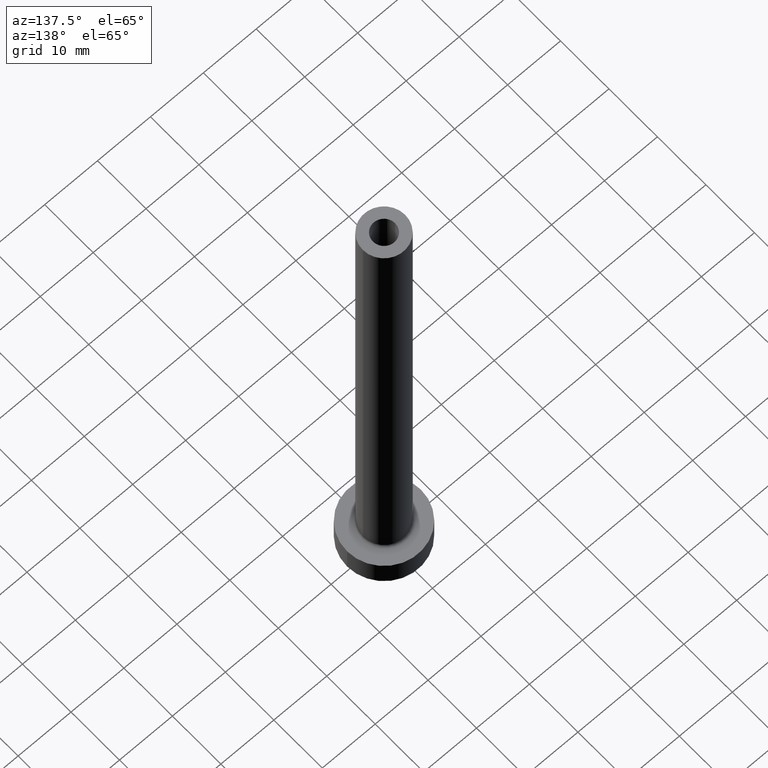
[diagram: clean part render]
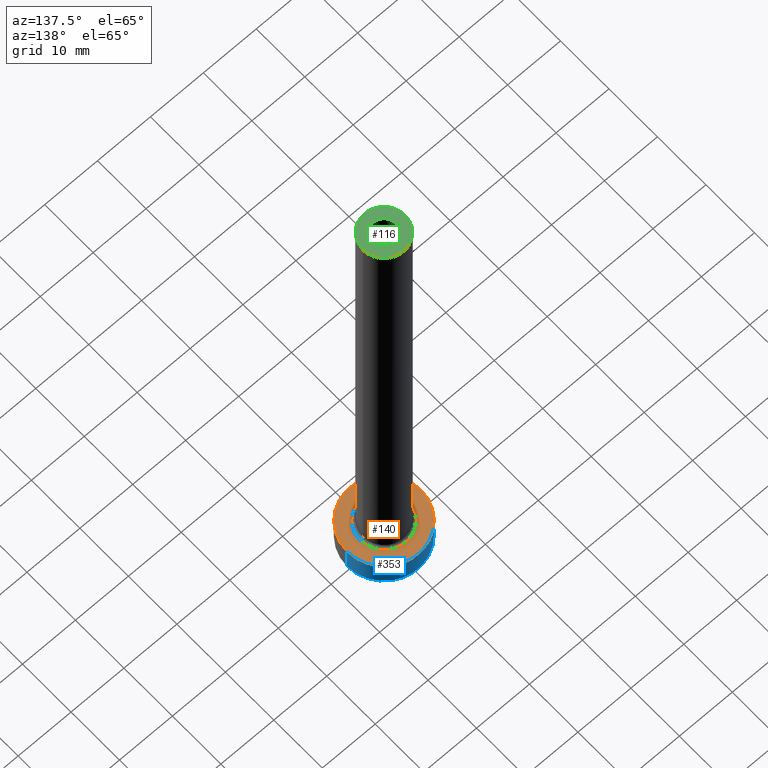
[diagram: same view with three faces highlighted in distinct colors, each labeled with its STEP entity id]
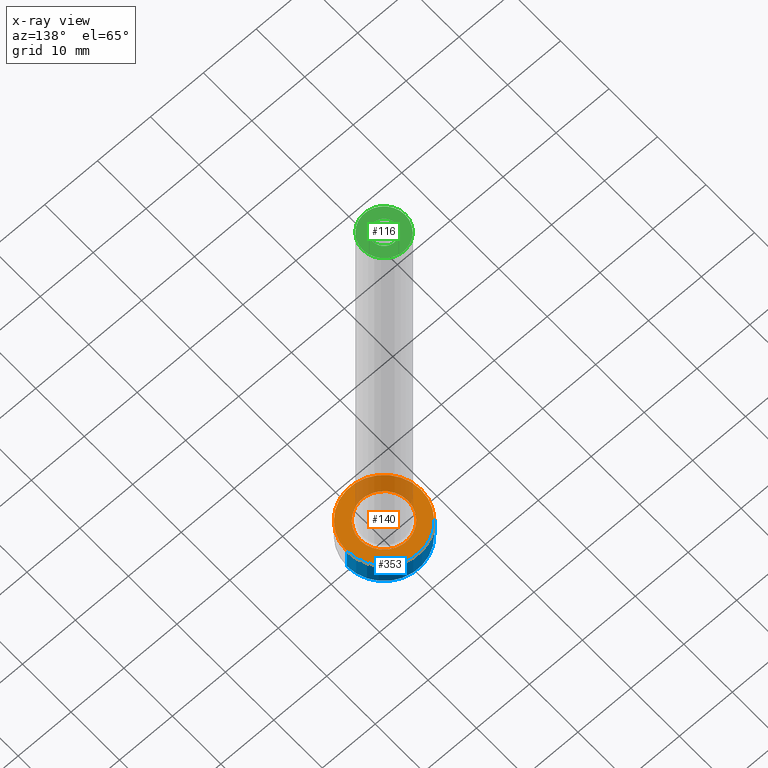
[diagram: x-ray of the same camera — body ghosted, the three highlighted faces saturated]
A machine part, auxiliary view with three faces highlighted in distinct colors.
The next image is the same camera in x-ray (body ghosted, the three faces saturated) — at least one of them is partly hidden behind the body in this view.
Their STEP definitions:

[orange] entity #140 — the highlighted planar face has unit normal (0, 0, 1).
#2 = DIRECTION ( 'NONE',  ( 0.000000000000000000, 0.000000000000000000, 1.000000000000000000 ) ) ;
#3 = ORIENTED_EDGE ( 'NONE', *, *, #135, .T. ) ;
#29 = VERTEX_POINT ( 'NONE', #160 ) ;
#36 = CARTESIAN_POINT ( 'NONE',  ( 7.000000000000000000, 8.572527594031473190E-16, 5.000000000000000000 ) ) ;
#42 = CARTESIAN_POINT ( 'NONE',  ( 0.000000000000000000, 0.000000000000000000, 5.000000000000000000 ) ) ;
#43 = VERTEX_POINT ( 'NONE', #36 ) ;
#44 = ORIENTED_EDGE ( 'NONE', *, *, #229, .T. ) ;
#53 = CARTESIAN_POINT ( 'NONE',  ( 0.000000000000000000, 0.000000000000000000, 5.000000000000000000 ) ) ;
#63 = AXIS2_PLACEMENT_3D ( 'NONE', #231, #299, #189 ) ;
#115 = CARTESIAN_POINT ( 'NONE',  ( -4.500000000000000888, 5.510910596163088569E-16, 5.000000000000002665 ) ) ;
#118 = CIRCLE ( 'NONE', #421, 7.000000000000000000 ) ;
#135 = EDGE_CURVE ( 'NONE', #29, #43, #118, .T. ) ;
#140 = ADVANCED_FACE ( 'NONE', ( #181, #177 ), #214, .T. ) ;
#143 = EDGE_LOOP ( 'NONE', ( #304, #451 ) ) ;
#145 = DIRECTION ( 'NONE',  ( -0.000000000000000000, -0.000000000000000000, -1.000000000000000000 ) ) ;
#160 = CARTESIAN_POINT ( 'NONE',  ( -7.000000000000000000, 0.000000000000000000, 5.000000000000000000 ) ) ;
#165 = CARTESIAN_POINT ( 'NONE',  ( 0.000000000000000000, 0.000000000000000000, 5.000000000000000000 ) ) ;
#169 = DIRECTION ( 'NONE',  ( -0.000000000000000000, -0.000000000000000000, -1.000000000000000000 ) ) ;
#177 = FACE_OUTER_BOUND ( 'NONE', #415, .T. ) ;
#181 = FACE_BOUND ( 'NONE', #143, .T. ) ;
#189 = DIRECTION ( 'NONE',  ( 1.000000000000000000, 0.000000000000000000, 0.000000000000000000 ) ) ;
#195 = CARTESIAN_POINT ( 'NONE',  ( 0.000000000000000000, 0.000000000000000000, 5.000000000000000000 ) ) ;
#198 = CIRCLE ( 'NONE', #63, 7.000000000000000000 ) ;
#214 = PLANE ( 'NONE',  #217 ) ;
#217 = AXIS2_PLACEMENT_3D ( 'NONE', #42, #327, #356 ) ;
#229 = EDGE_CURVE ( 'NONE', #43, #29, #198, .T. ) ;
#231 = CARTESIAN_POINT ( 'NONE',  ( 0.000000000000000000, 0.000000000000000000, 5.000000000000000000 ) ) ;
#246 = DIRECTION ( 'NONE',  ( 1.000000000000000000, 0.000000000000000000, 0.000000000000000000 ) ) ;
#299 = DIRECTION ( 'NONE',  ( 0.000000000000000000, 0.000000000000000000, 1.000000000000000000 ) ) ;
#304 = ORIENTED_EDGE ( 'NONE', *, *, #347, .T. ) ;
#323 = VERTEX_POINT ( 'NONE', #115 ) ;
#327 = DIRECTION ( 'NONE',  ( 0.000000000000000000, 0.000000000000000000, 1.000000000000000000 ) ) ;
#336 = CARTESIAN_POINT ( 'NONE',  ( 4.500000000000000888, 0.000000000000000000, 5.000000000000002665 ) ) ;
#347 = EDGE_CURVE ( 'NONE', #382, #323, #454, .T. ) ;
#348 = CIRCLE ( 'NONE', #446, 4.500000000000000888 ) ;
#354 = AXIS2_PLACEMENT_3D ( 'NONE', #195, #145, #442 ) ;
#356 = DIRECTION ( 'NONE',  ( 1.000000000000000000, 0.000000000000000000, -0.000000000000000000 ) ) ;
#382 = VERTEX_POINT ( 'NONE', #336 ) ;
#415 = EDGE_LOOP ( 'NONE', ( #3, #44 ) ) ;
#421 = AXIS2_PLACEMENT_3D ( 'NONE', #53, #2, #246 ) ;
#438 = EDGE_CURVE ( 'NONE', #323, #382, #348, .T. ) ;
#442 = DIRECTION ( 'NONE',  ( 1.000000000000000000, 0.000000000000000000, 0.000000000000000000 ) ) ;
#446 = AXIS2_PLACEMENT_3D ( 'NONE', #165, #169, #455 ) ;
#451 = ORIENTED_EDGE ( 'NONE', *, *, #438, .T. ) ;
#454 = CIRCLE ( 'NONE', #354, 4.500000000000000888 ) ;
#455 = DIRECTION ( 'NONE',  ( 1.000000000000000000, 0.000000000000000000, 0.000000000000000000 ) ) ;

[blue] entity #353 — the highlighted cylindrical surface (partial cylindrical patch) has radius 7 mm, axis along (-0, -0, -1).
#9 = CARTESIAN_POINT ( 'NONE',  ( -7.000000000000000000, 0.000000000000000000, 0.000000000000000000 ) ) ;
#11 = FACE_OUTER_BOUND ( 'NONE', #364, .T. ) ;
#17 = LINE ( 'NONE', #223, #362 ) ;
#25 = ORIENTED_EDGE ( 'NONE', *, *, #419, .T. ) ;
#29 = VERTEX_POINT ( 'NONE', #160 ) ;
#34 = LINE ( 'NONE', #242, #245 ) ;
#36 = CARTESIAN_POINT ( 'NONE',  ( 7.000000000000000000, 8.572527594031473190E-16, 5.000000000000000000 ) ) ;
#43 = VERTEX_POINT ( 'NONE', #36 ) ;
#63 = AXIS2_PLACEMENT_3D ( 'NONE', #231, #299, #189 ) ;
#69 = DIRECTION ( 'NONE',  ( -0.000000000000000000, -0.000000000000000000, -1.000000000000000000 ) ) ;
#86 = ORIENTED_EDGE ( 'NONE', *, *, #229, .F. ) ;
#88 = CARTESIAN_POINT ( 'NONE',  ( 0.000000000000000000, 0.000000000000000000, 0.000000000000000000 ) ) ;
#90 = DIRECTION ( 'NONE',  ( -0.000000000000000000, -0.000000000000000000, -1.000000000000000000 ) ) ;
#105 = EDGE_CURVE ( 'NONE', #29, #152, #34, .T. ) ;
#112 = CARTESIAN_POINT ( 'NONE',  ( 0.000000000000000000, 0.000000000000000000, 5.000000000000000000 ) ) ;
#119 = CYLINDRICAL_SURFACE ( 'NONE', #218, 7.000000000000000000 ) ;
#148 = ORIENTED_EDGE ( 'NONE', *, *, #194, .T. ) ;
#152 = VERTEX_POINT ( 'NONE', #9 ) ;
#160 = CARTESIAN_POINT ( 'NONE',  ( -7.000000000000000000, 0.000000000000000000, 5.000000000000000000 ) ) ;
#173 = AXIS2_PLACEMENT_3D ( 'NONE', #88, #367, #303 ) ;
#189 = DIRECTION ( 'NONE',  ( 1.000000000000000000, 0.000000000000000000, 0.000000000000000000 ) ) ;
#194 = EDGE_CURVE ( 'NONE', #328, #152, #383, .T. ) ;
#198 = CIRCLE ( 'NONE', #63, 7.000000000000000000 ) ;
#218 = AXIS2_PLACEMENT_3D ( 'NONE', #112, #90, #257 ) ;
#223 = CARTESIAN_POINT ( 'NONE',  ( 7.000000000000000000, 8.572527594031473190E-16, 5.000000000000000000 ) ) ;
#229 = EDGE_CURVE ( 'NONE', #43, #29, #198, .T. ) ;
#231 = CARTESIAN_POINT ( 'NONE',  ( 0.000000000000000000, 0.000000000000000000, 5.000000000000000000 ) ) ;
#242 = CARTESIAN_POINT ( 'NONE',  ( -7.000000000000000000, 0.000000000000000000, 5.000000000000000000 ) ) ;
#245 = VECTOR ( 'NONE', #69, 1000.000000000000000 ) ;
#257 = DIRECTION ( 'NONE',  ( -1.000000000000000000, 0.000000000000000000, 0.000000000000000000 ) ) ;
#295 = DIRECTION ( 'NONE',  ( -0.000000000000000000, -0.000000000000000000, -1.000000000000000000 ) ) ;
#299 = DIRECTION ( 'NONE',  ( 0.000000000000000000, 0.000000000000000000, 1.000000000000000000 ) ) ;
#300 = ORIENTED_EDGE ( 'NONE', *, *, #105, .F. ) ;
#303 = DIRECTION ( 'NONE',  ( 1.000000000000000000, 0.000000000000000000, 0.000000000000000000 ) ) ;
#328 = VERTEX_POINT ( 'NONE', #329 ) ;
#329 = CARTESIAN_POINT ( 'NONE',  ( 7.000000000000000000, 8.572527594031473190E-16, 0.000000000000000000 ) ) ;
#353 = ADVANCED_FACE ( 'NONE', ( #11 ), #119, .T. ) ;
#362 = VECTOR ( 'NONE', #295, 1000.000000000000000 ) ;
#364 = EDGE_LOOP ( 'NONE', ( #86, #25, #148, #300 ) ) ;
#367 = DIRECTION ( 'NONE',  ( 0.000000000000000000, 0.000000000000000000, 1.000000000000000000 ) ) ;
#383 = CIRCLE ( 'NONE', #173, 7.000000000000000000 ) ;
#419 = EDGE_CURVE ( 'NONE', #43, #328, #17, .T. ) ;

[green] entity #116 — the highlighted planar face has unit normal (0, 0, 1).
#47 = VERTEX_POINT ( 'NONE', #313 ) ;
#67 = CARTESIAN_POINT ( 'NONE',  ( 4.000000000000000000, 4.898587196589412829E-16, 100.0000000000000000 ) ) ;
#72 = FACE_BOUND ( 'NONE', #293, .T. ) ;
#85 = CARTESIAN_POINT ( 'NONE',  ( -4.000000000000000000, 0.000000000000000000, 100.0000000000000000 ) ) ;
#89 = VERTEX_POINT ( 'NONE', #67 ) ;
#116 = ADVANCED_FACE ( 'NONE', ( #72, #378 ), #243, .T. ) ;
#117 = DIRECTION ( 'NONE',  ( 1.000000000000000000, 0.000000000000000000, 0.000000000000000000 ) ) ;
#128 = CARTESIAN_POINT ( 'NONE',  ( 0.000000000000000000, 0.000000000000000000, 100.0000000000000000 ) ) ;
#138 = AXIS2_PLACEMENT_3D ( 'NONE', #196, #270, #408 ) ;
#146 = AXIS2_PLACEMENT_3D ( 'NONE', #411, #332, #405 ) ;
#163 = DIRECTION ( 'NONE',  ( 1.000000000000000000, 0.000000000000000000, 0.000000000000000000 ) ) ;
#166 = CIRCLE ( 'NONE', #423, 4.000000000000000000 ) ;
#188 = CIRCLE ( 'NONE', #146, 4.000000000000000000 ) ;
#196 = CARTESIAN_POINT ( 'NONE',  ( 0.000000000000000000, 0.000000000000000000, 100.0000000000000000 ) ) ;
#215 = VERTEX_POINT ( 'NONE', #85 ) ;
#224 = ORIENTED_EDGE ( 'NONE', *, *, #249, .F. ) ;
#225 = AXIS2_PLACEMENT_3D ( 'NONE', #317, #272, #379 ) ;
#226 = AXIS2_PLACEMENT_3D ( 'NONE', #376, #412, #117 ) ;
#232 = EDGE_LOOP ( 'NONE', ( #290, #335 ) ) ;
#240 = EDGE_CURVE ( 'NONE', #361, #47, #429, .T. ) ;
#243 = PLANE ( 'NONE',  #225 ) ;
#249 = EDGE_CURVE ( 'NONE', #47, #361, #459, .T. ) ;
#260 = ORIENTED_EDGE ( 'NONE', *, *, #240, .F. ) ;
#269 = CARTESIAN_POINT ( 'NONE',  ( 2.100000000000000089, 2.571758278209441464E-16, 100.0000000000000000 ) ) ;
#270 = DIRECTION ( 'NONE',  ( 0.000000000000000000, 0.000000000000000000, 1.000000000000000000 ) ) ;
#272 = DIRECTION ( 'NONE',  ( 0.000000000000000000, 0.000000000000000000, 1.000000000000000000 ) ) ;
#290 = ORIENTED_EDGE ( 'NONE', *, *, #369, .T. ) ;
#293 = EDGE_LOOP ( 'NONE', ( #224, #260 ) ) ;
#302 = EDGE_CURVE ( 'NONE', #89, #215, #166, .T. ) ;
#313 = CARTESIAN_POINT ( 'NONE',  ( -2.100000000000000089, 0.000000000000000000, 100.0000000000000000 ) ) ;
#317 = CARTESIAN_POINT ( 'NONE',  ( 0.000000000000000000, 0.000000000000000000, 100.0000000000000000 ) ) ;
#332 = DIRECTION ( 'NONE',  ( 0.000000000000000000, 0.000000000000000000, 1.000000000000000000 ) ) ;
#335 = ORIENTED_EDGE ( 'NONE', *, *, #302, .T. ) ;
#343 = DIRECTION ( 'NONE',  ( 0.000000000000000000, 0.000000000000000000, 1.000000000000000000 ) ) ;
#361 = VERTEX_POINT ( 'NONE', #269 ) ;
#369 = EDGE_CURVE ( 'NONE', #215, #89, #188, .T. ) ;
#376 = CARTESIAN_POINT ( 'NONE',  ( 0.000000000000000000, 0.000000000000000000, 100.0000000000000000 ) ) ;
#378 = FACE_OUTER_BOUND ( 'NONE', #232, .T. ) ;
#379 = DIRECTION ( 'NONE',  ( 1.000000000000000000, 0.000000000000000000, -0.000000000000000000 ) ) ;
#405 = DIRECTION ( 'NONE',  ( 1.000000000000000000, 0.000000000000000000, 0.000000000000000000 ) ) ;
#408 = DIRECTION ( 'NONE',  ( 1.000000000000000000, 0.000000000000000000, 0.000000000000000000 ) ) ;
#411 = CARTESIAN_POINT ( 'NONE',  ( 0.000000000000000000, 0.000000000000000000, 100.0000000000000000 ) ) ;
#412 = DIRECTION ( 'NONE',  ( 0.000000000000000000, 0.000000000000000000, 1.000000000000000000 ) ) ;
#423 = AXIS2_PLACEMENT_3D ( 'NONE', #128, #343, #163 ) ;
#429 = CIRCLE ( 'NONE', #138, 2.100000000000000089 ) ;
#459 = CIRCLE ( 'NONE', #226, 2.100000000000000089 ) ;